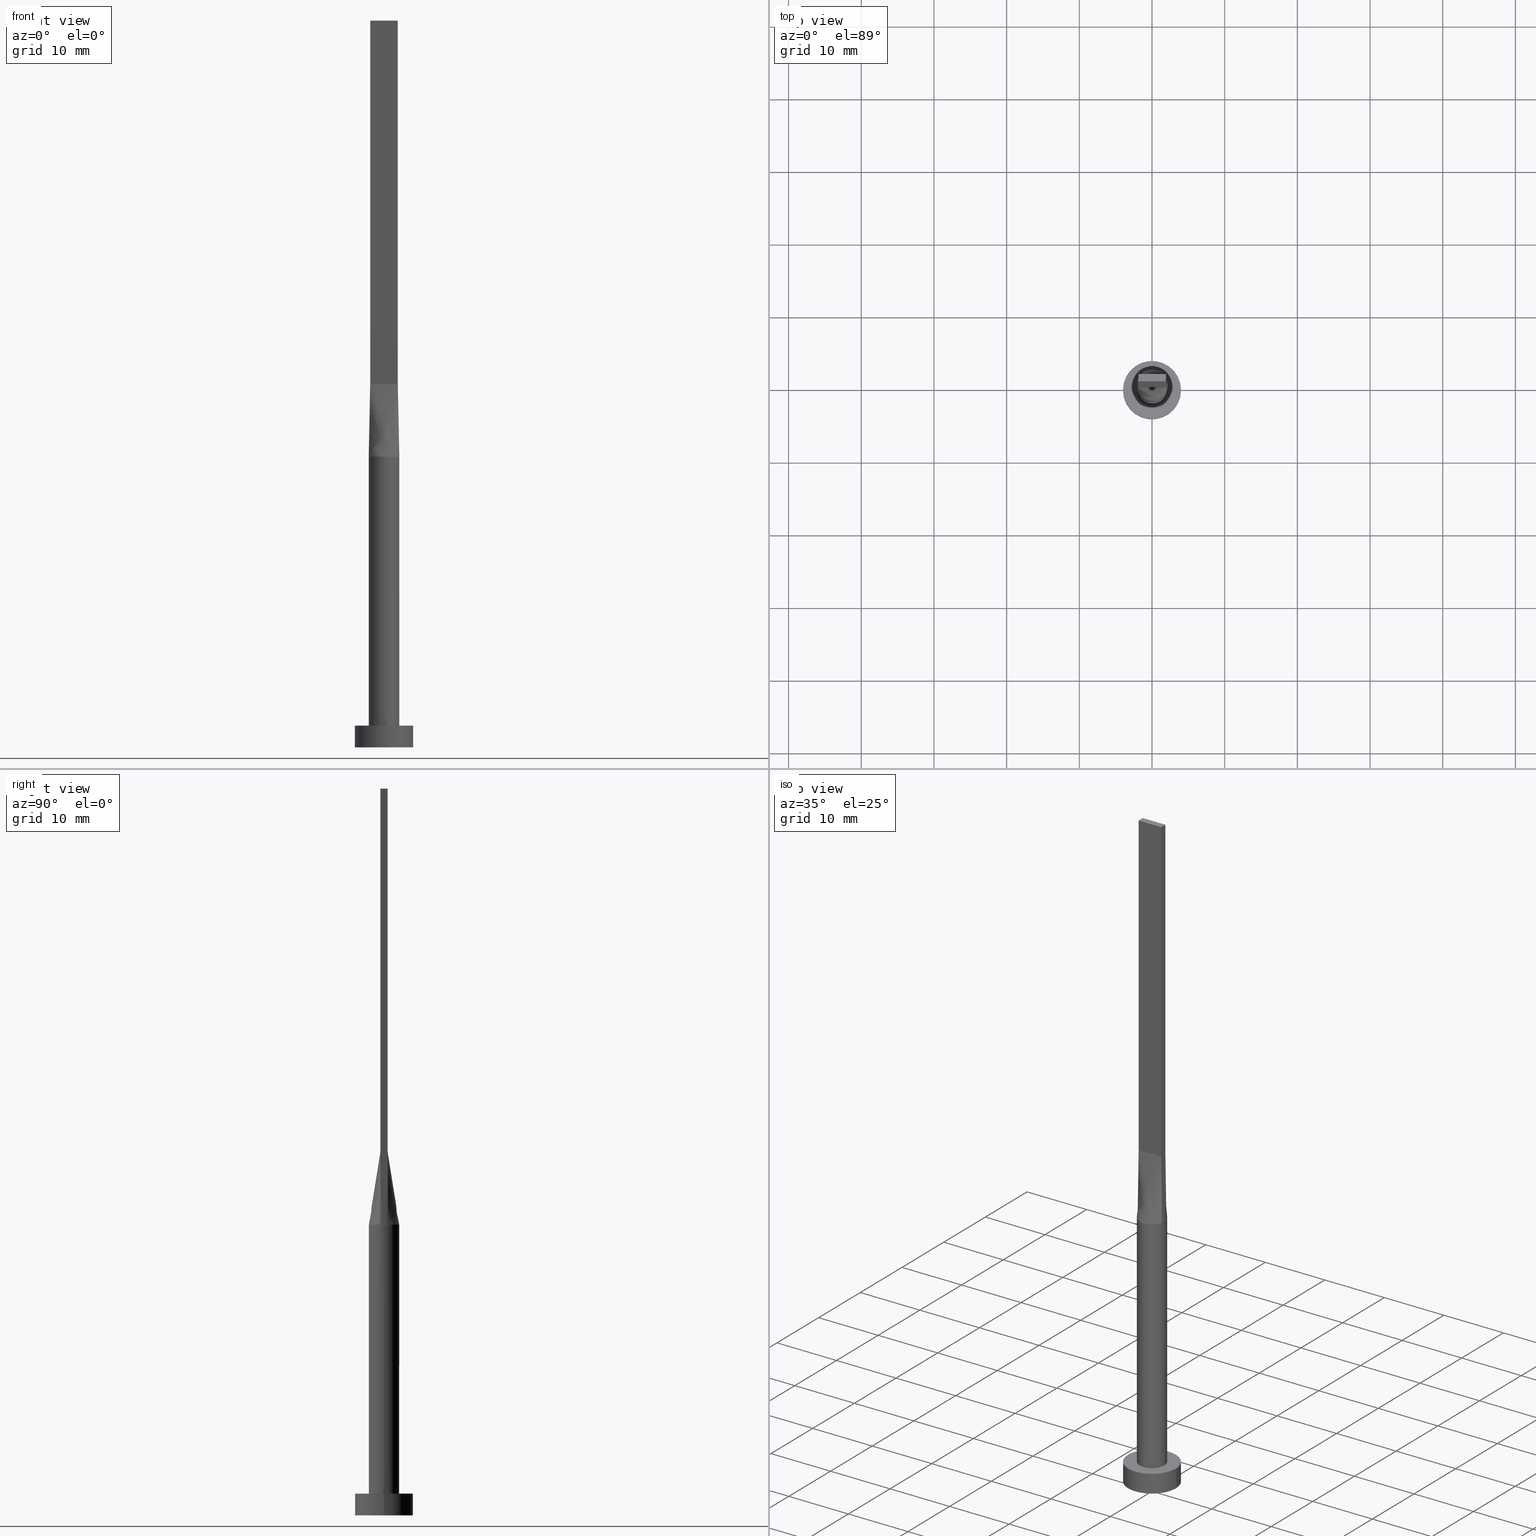
[diagram: canonical four-view strip — front | top / right | iso, engineering-drawing reading convention]
A machine part, canonical four-view strip (front | top / right | iso — engineering-drawing reading convention). The complete STEP part file that produces these views, byte-faithful:
ISO-10303-21;
HEADER;
FILE_DESCRIPTION (( 'STEP AP203' ),
    '1' );
FILE_NAME ('36a3.STEP',
    '2023-02-13T13:22:19',
    ( '' ),
    ( '' ),
    'SwSTEP 2.0',
    'SolidWorks 2019',
    '' );
FILE_SCHEMA (( 'CONFIG_CONTROL_DESIGN' ));
ENDSEC;

DATA;
#1 = LINE ( 'NONE', #304, #254 ) ;
#2 = EDGE_LOOP ( 'NONE', ( #116, #340 ) ) ;
#3 = CARTESIAN_POINT ( 'NONE',  ( 1.920830191244603746, 0.8725264301372623876, 40.00000000000000000 ) ) ;
#4 = ORIENTED_EDGE ( 'NONE', *, *, #578, .F. ) ;
#5 = CARTESIAN_POINT ( 'NONE',  ( -2.030856528251558046, -0.5344359284872515214, 40.00000000000000000 ) ) ;
#6 = CARTESIAN_POINT ( 'NONE',  ( 0.6333333333333373005, 0.5000000000000002220, 50.00000000000000000 ) ) ;
#7 = ORIENTED_EDGE ( 'NONE', *, *, #36, .T. ) ;
#8 = EDGE_CURVE ( 'NONE', #329, #137, #158, .T. ) ;
#9 = CARTESIAN_POINT ( 'NONE',  ( -0.5389299406762299016, 2.046272663899431965, 39.99999999999999289 ) ) ;
#10 = ORIENTED_EDGE ( 'NONE', *, *, #207, .F. ) ;
#11 = CARTESIAN_POINT ( 'NONE',  ( -2.030856528251557602, 0.5344359284872521876, 40.00000000000000000 ) ) ;
#12 = FACE_OUTER_BOUND ( 'NONE', #159, .T. ) ;
#13 = EDGE_CURVE ( 'NONE', #506, #454, #17, .T. ) ;
#14 = DIRECTION ( 'NONE',  ( 0.000000000000000000, 0.000000000000000000, 1.000000000000000000 ) ) ;
#15 = CARTESIAN_POINT ( 'NONE',  ( -2.031019593402089818, 0.5344793603115657321, 40.00000000000000000 ) ) ;
#16 = CC_DESIGN_PERSON_AND_ORGANIZATION_ASSIGNMENT ( #200, #204, ( #81 ) ) ;
#17 = LINE ( 'NONE', #325, #124 ) ;
#18 = CIRCLE ( 'NONE', #88, 2.100000000000000089 ) ;
#19 = ORIENTED_EDGE ( 'NONE', *, *, #414, .T. ) ;
#20 = AXIS2_PLACEMENT_3D ( 'NONE', #415, #14, #86 ) ;
#21 = CARTESIAN_POINT ( 'NONE',  ( 2.030996101999494652, 0.5344731476277209126, 40.00000000000000000 ) ) ;
#22 = DIRECTION ( 'NONE',  ( 5.706327223607920020E-17, 1.000000000000000000, -0.000000000000000000 ) ) ;
#23 = APPROVAL_DATE_TIME ( #445, #114 ) ;
#24 = CARTESIAN_POINT ( 'NONE',  ( 1.899999999999999467, 0.1666666666666668795, 50.00000000000000000 ) ) ;
#25 = APPROVAL_ROLE ( '' ) ;
#26 = ORIENTED_EDGE ( 'NONE', *, *, #514, .T. ) ;
#27 = CARTESIAN_POINT ( 'NONE',  ( -1.899999999999999911, -0.4999999999999995559, 50.00000000000000000 ) ) ;
#28 = CARTESIAN_POINT ( 'NONE',  ( 1.583333333333331039, -0.4999999999999997780, 50.00000000000000000 ) ) ;
#29 = DATE_AND_TIME ( #383, #495 ) ;
#30 = EDGE_CURVE ( 'NONE', #139, #576, #64, .T. ) ;
#31 = DIRECTION ( 'NONE',  ( 1.000000000000000000, 0.000000000000000000, 0.000000000000000000 ) ) ;
#32 = SECURITY_CLASSIFICATION_LEVEL ( 'unclassified' ) ;
#33 = CARTESIAN_POINT ( 'NONE',  ( -1.583333333333331927, 0.5000000000000002220, 50.00000000000000000 ) ) ;
#34 = CARTESIAN_POINT ( 'NONE',  ( -1.899999999999999467, 0.1666666666666670460, 50.00000000000000000 ) ) ;
#35 = FACE_OUTER_BOUND ( 'NONE', #128, .T. ) ;
#36 = EDGE_CURVE ( 'NONE', #49, #275, #97, .T. ) ;
#37 = DIRECTION ( 'NONE',  ( -1.000000000000000000, 6.505213034913026604E-16, 0.000000000000000000 ) ) ;
#38 = ORIENTED_EDGE ( 'NONE', *, *, #328, .T. ) ;
#39 = FACE_OUTER_BOUND ( 'NONE', #220, .T. ) ;
#40 = CARTESIAN_POINT ( 'NONE',  ( 1.583333333333334814, 0.5000000000000002220, 50.00000000000000711 ) ) ;
#41 = CARTESIAN_POINT ( 'NONE',  ( 0.000000000000000000, 0.000000000000000000, 40.00000000000000000 ) ) ;
#42 = CARTESIAN_POINT ( 'NONE',  ( 0.1583333333333381276, 0.5000000000000002220, 50.00000000000000000 ) ) ;
#43 = ORIENTED_EDGE ( 'NONE', *, *, #394, .F. ) ;
#44 = AXIS2_PLACEMENT_3D ( 'NONE', #339, #392, #251 ) ;
#45 = FACE_OUTER_BOUND ( 'NONE', #109, .T. ) ;
#46 = CARTESIAN_POINT ( 'NONE',  ( -2.100000000000000089, 0.000000000000000000, 40.00000000000000000 ) ) ;
#47 = ADVANCED_FACE ( 'NONE', ( #12 ), #271, .F. ) ;
#48 = CARTESIAN_POINT ( 'NONE',  ( 1.899999999999999023, -0.4999999999999997780, 50.00000000000000000 ) ) ;
#49 = VERTEX_POINT ( 'NONE', #568 ) ;
#50 = LOCAL_TIME ( 14, 22, 19.00000000000000000, #156 ) ;
#51 = CARTESIAN_POINT ( 'NONE',  ( -0.1583333333333283577, 0.5000000000000002220, 50.00000000000000000 ) ) ;
#52 = ORIENTED_EDGE ( 'NONE', *, *, #366, .T. ) ;
#53 = FACE_OUTER_BOUND ( 'NONE', #60, .T. ) ;
#54 = DIRECTION ( 'NONE',  ( 1.000000000000000000, 0.000000000000000000, 0.000000000000000000 ) ) ;
#55 = CARTESIAN_POINT ( 'NONE',  ( 1.235326090059014614, 1.714395692508636770, 40.00000000000002132 ) ) ;
#56 = EDGE_CURVE ( 'NONE', #565, #223, #485, .T. ) ;
#57 = CARTESIAN_POINT ( 'NONE',  ( -1.021961681204346384, 1.852908961101259022, 39.99999999999998579 ) ) ;
#58 = VECTOR ( 'NONE', #430, 1000.000000000000000 ) ;
#59 = DIRECTION ( 'NONE',  ( 1.000000000000000000, -2.168404344971009361E-16, 0.000000000000000000 ) ) ;
#60 = EDGE_LOOP ( 'NONE', ( #43, #496, #355, #227, #400, #546 ) ) ;
#61 = CIRCLE ( 'NONE', #395, 2.100000000000000089 ) ;
#62 = ORIENTED_EDGE ( 'NONE', *, *, #101, .T. ) ;
#63 = CARTESIAN_POINT ( 'NONE',  ( -1.583604922800831760, -1.399063468093435958, 40.00000000000000711 ) ) ;
#64 = B_SPLINE_CURVE_WITH_KNOTS ( 'NONE', 3,
 ( #21, #472, #144, #515, #239, #55, #422, #178, #373, #241, #423, #57, #182, #268, #549, #232, #465, #15 ),
 .UNSPECIFIED., .F., .F.,
 ( 4, 2, 2, 2, 2, 2, 2, 2, 4 ),
 ( 0.000000000000000000, 0.1250000000000000278, 0.2500000000000000555, 0.3750000000000001110, 0.5000000000000000000, 0.6250000000000000000, 0.7500000000000000000, 0.8750000000000001110, 1.000000000000000000 ),
 .UNSPECIFIED. ) ;
#65 = CIRCLE ( 'NONE', #20, 2.100000000000000089 ) ;
#66 = DIRECTION ( 'NONE',  ( 0.000000000000000000, 0.000000000000000000, 1.000000000000000000 ) ) ;
#67 = CALENDAR_DATE ( 2023, 13, 2 ) ;
#68 = ADVANCED_FACE ( 'NONE', ( #71, #102 ), #575, .T. ) ;
#69 = CARTESIAN_POINT ( 'NONE',  ( -1.899999999999999911, -0.4999999999999995559, 50.00000000000000000 ) ) ;
#70 = CARTESIAN_POINT ( 'NONE',  ( -2.030856528251558046, -0.5344359284872516325, 40.00000000000000000 ) ) ;
#71 = FACE_BOUND ( 'NONE', #218, .T. ) ;
#72 = CARTESIAN_POINT ( 'NONE',  ( 1.899999999999999689, -0.3333333333333330928, 50.00000000000000000 ) ) ;
#73 = VECTOR ( 'NONE', #399, 1000.000000000000000 ) ;
#74 = APPROVAL_PERSON_ORGANIZATION ( #440, #518, #25 ) ;
#75 = COORDINATED_UNIVERSAL_TIME_OFFSET ( 1, 0, .AHEAD. ) ;
#76 = FACE_OUTER_BOUND ( 'NONE', #580, .T. ) ;
#77 = ADVANCED_FACE ( 'NONE', ( #441 ), #567, .T. ) ;
#78 = CARTESIAN_POINT ( 'NONE',  ( -1.021961681204346384, 1.852908961101259022, 39.99999999999998579 ) ) ;
#79 = CARTESIAN_POINT ( 'NONE',  ( 1.899999999999999689, 0.5000000000000002220, 50.00000000000000000 ) ) ;
#80 = ORIENTED_EDGE ( 'NONE', *, *, #13, .T. ) ;
#81 = SECURITY_CLASSIFICATION ( '', '', #32 ) ;
#82 = CARTESIAN_POINT ( 'NONE',  ( -0.6333333333333288628, 0.5000000000000002220, 50.00000000000000000 ) ) ;
#83 = ORIENTED_EDGE ( 'NONE', *, *, #341, .T. ) ;
#84 = ADVANCED_FACE ( 'NONE', ( #193 ), #526, .F. ) ;
#85 = FACE_OUTER_BOUND ( 'NONE', #550, .T. ) ;
#86 = DIRECTION ( 'NONE',  ( 1.000000000000000000, 0.000000000000000000, 0.000000000000000000 ) ) ;
#87 = EDGE_LOOP ( 'NONE', ( #362, #206, #123, #52 ) ) ;
#88 = AXIS2_PLACEMENT_3D ( 'NONE', #111, #66, #245 ) ;
#89 = CYLINDRICAL_SURFACE ( 'NONE', #364, 2.100000000000000089 ) ;
#90 = LINE ( 'NONE', #131, #386 ) ;
#91 = ORIENTED_EDGE ( 'NONE', *, *, #30, .F. ) ;
#92 = CARTESIAN_POINT ( 'NONE',  ( 0.000000000000000000, 0.000000000000000000, 0.000000000000000000 ) ) ;
#93 = LINE ( 'NONE', #557, #319 ) ;
#94 = ORIENTED_EDGE ( 'NONE', *, *, #270, .T. ) ;
#95 = EDGE_CURVE ( 'NONE', #275, #460, #106, .T. ) ;
#96 = ORIENTED_EDGE ( 'NONE', *, *, #183, .F. ) ;
#97 = LINE ( 'NONE', #230, #502 ) ;
#98 = LINE ( 'NONE', #216, #398 ) ;
#99 = AXIS2_PLACEMENT_3D ( 'NONE', #540, #306, #311 ) ;
#100 = ORIENTED_EDGE ( 'NONE', *, *, #141, .T. ) ;
#101 = EDGE_CURVE ( 'NONE', #173, #297, #112, .T. ) ;
#102 = FACE_OUTER_BOUND ( 'NONE', #547, .T. ) ;
#103 = CYLINDRICAL_SURFACE ( 'NONE', #308, 4.000000000000000000 ) ;
#104 = PERSON_AND_ORGANIZATION ( #277, #554 ) ;
#105 = CIRCLE ( 'NONE', #233, 2.100000000000000089 ) ;
#106 = LINE ( 'NONE', #354, #573 ) ;
#107 = CARTESIAN_POINT ( 'NONE',  ( -2.100000000000000977, -0.1811271572287798393, 40.00000000000000000 ) ) ;
#108 = DIRECTION ( 'NONE',  ( -0.000000000000000000, -0.000000000000000000, -1.000000000000000000 ) ) ;
#109 = EDGE_LOOP ( 'NONE', ( #19, #273, #4, #176 ) ) ;
#110 = COORDINATED_UNIVERSAL_TIME_OFFSET ( 1, 0, .AHEAD. ) ;
#111 = CARTESIAN_POINT ( 'NONE',  ( 0.000000000000000000, 0.000000000000000000, 40.00000000000000000 ) ) ;
#112 = CIRCLE ( 'NONE', #457, 4.000000000000000000 ) ;
#113 = CARTESIAN_POINT ( 'NONE',  ( 0.7916666666666622998, -0.4999999999999996669, 50.00000000000000000 ) ) ;
#114 = APPROVAL ( #285, 'NEUR�EN�' ) ;
#115 = DIRECTION ( 'NONE',  ( 0.000000000000000000, 0.000000000000000000, 1.000000000000000000 ) ) ;
#116 = ORIENTED_EDGE ( 'NONE', *, *, #366, .F. ) ;
#117 = CARTESIAN_POINT ( 'NONE',  ( -2.031019593402089818, 0.5344793603115657321, 40.00000000000000000 ) ) ;
#118 = COORDINATED_UNIVERSAL_TIME_OFFSET ( 1, 0, .AHEAD. ) ;
#119 = B_SPLINE_SURFACE_WITH_KNOTS ( 'NONE', 3, 1, ( 
 ( #5, #545 ),
 ( #313, #501 ),
 ( #252, #519 ),
 ( #374, #488 ),
 ( #63, #555 ),
 ( #283, #479 ),
 ( #437, #291 ),
 ( #246, #347 ),
 ( #428, #242 ),
 ( #194, #421 ),
 ( #435, #537 ),
 ( #571, #164 ),
 ( #356, #113 ),
 ( #491, #524 ),
 ( #581, #293 ),
 ( #360, #28 ),
 ( #343, #489 ),
 ( #234, #189 ) ),
 .UNSPECIFIED., .F., .F., .F.,
 ( 4, 2, 2, 2, 2, 2, 2, 2, 4 ),
 ( 2, 2 ),
 ( 0.000000000000000000, 0.1250000000000000555, 0.2500000000000001665, 0.3750000000000002776, 0.5000000000000003331, 0.6250000000000002220, 0.7500000000000002220, 0.8750000000000001110, 1.000000000000000000 ),
 ( 0.000000000000000000, 1.000000000000000000 ),
 .UNSPECIFIED. ) ;
#120 = CARTESIAN_POINT ( 'NONE',  ( 0.000000000000000000, 0.000000000000000000, 3.000000000000000000 ) ) ;
#121 = CARTESIAN_POINT ( 'NONE',  ( -1.899999999999999689, 0.5000000000000002220, 100.0000000000000000 ) ) ;
#122 = CARTESIAN_POINT ( 'NONE',  ( -2.030856528251557602, 0.5344359284872521876, 40.00000000000000000 ) ) ;
#123 = ORIENTED_EDGE ( 'NONE', *, *, #224, .T. ) ;
#124 = VECTOR ( 'NONE', #416, 1000.000000000000000 ) ;
#125 = PRODUCT_DEFINITION_SHAPE ( 'NONE', 'NONE',  #259 ) ;
#126 = LINE ( 'NONE', #250, #280 ) ;
#127 = CARTESIAN_POINT ( 'NONE',  ( 1.108333333333336279, 0.5000000000000002220, 50.00000000000000000 ) ) ;
#128 = EDGE_LOOP ( 'NONE', ( #258, #94, #62, #168 ) ) ;
#129 = AXIS2_PLACEMENT_3D ( 'NONE', #401, #37, #315 ) ;
#130 = EDGE_CURVE ( 'NONE', #576, #385, #18, .T. ) ;
#131 = CARTESIAN_POINT ( 'NONE',  ( 1.965428264125778091, -0.5172179642436263158, 45.00000000000000000 ) ) ;
#132 = ORIENTED_EDGE ( 'NONE', *, *, #544, .T. ) ;
#133 = CARTESIAN_POINT ( 'NONE',  ( 0.3166666666666711483, 0.5000000000000002220, 50.00000000000000000 ) ) ;
#134 = ORIENTED_EDGE ( 'NONE', *, *, #328, .F. ) ;
#135 = CIRCLE ( 'NONE', #276, 2.100000000000000089 ) ;
#136 = EDGE_CURVE ( 'NONE', #393, #166, #61, .T. ) ;
#137 = VERTEX_POINT ( 'NONE', #248 ) ;
#138 = AXIS2_PLACEMENT_3D ( 'NONE', #570, #292, #530 ) ;
#139 = VERTEX_POINT ( 'NONE', #157 ) ;
#140 = AXIS2_PLACEMENT_3D ( 'NONE', #468, #59, #372 ) ;
#141 = EDGE_CURVE ( 'NONE', #385, #460, #135, .T. ) ;
#142 = VECTOR ( 'NONE', #149, 1000.000000000000000 ) ;
#143 = EDGE_LOOP ( 'NONE', ( #484, #552, #38, #237, #411 ) ) ;
#144 = CARTESIAN_POINT ( 'NONE',  ( 1.920830191244603746, 0.8725264301372623876, 40.00000000000000000 ) ) ;
#145 = DIRECTION ( 'NONE',  ( -2.168404344971008868E-16, 1.000000000000000000, -0.000000000000000000 ) ) ;
#146 = APPLICATION_PROTOCOL_DEFINITION ( 'international standard', 'config_control_design', 1994, #345 ) ;
#147 = CC_DESIGN_DATE_AND_TIME_ASSIGNMENT ( #426, #344, ( #259 ) ) ;
#148 = CARTESIAN_POINT ( 'NONE',  ( 2.100000000000000089, -0.1811271572287806442, 40.00000000000000711 ) ) ;
#149 = DIRECTION ( 'NONE',  ( -0.000000000000000000, -0.000000000000000000, -1.000000000000000000 ) ) ;
#150 = DATE_TIME_ROLE ( 'classification_date' ) ;
#151 = DIRECTION ( 'NONE',  ( 0.000000000000000000, -0.000000000000000000, -1.000000000000000000 ) ) ;
#152 = FACE_OUTER_BOUND ( 'NONE', #331, .T. ) ;
#153 = PERSON_AND_ORGANIZATION_ROLE ( 'creator' ) ;
#154 = CARTESIAN_POINT ( 'NONE',  ( 1.899999999999999689, -0.1666666666666664354, 50.00000000000000000 ) ) ;
#155 = CARTESIAN_POINT ( 'NONE',  ( 4.000000000000000000, 4.898587196589412829E-16, 3.000000000000000000 ) ) ;
#156 = COORDINATED_UNIVERSAL_TIME_OFFSET ( 1, 0, .AHEAD. ) ;
#157 = CARTESIAN_POINT ( 'NONE',  ( 2.030996101999494652, 0.5344731476277209126, 40.00000000000000000 ) ) ;
#158 = CIRCLE ( 'NONE', #240, 4.000000000000000000 ) ;
#159 = EDGE_LOOP ( 'NONE', ( #7, #196, #368, #188 ) ) ;
#160 = FACE_OUTER_BOUND ( 'NONE', #2, .T. ) ;
#161 = CARTESIAN_POINT ( 'NONE',  ( 1.899999999999999911, -0.4999999999999997780, 50.00000000000000000 ) ) ;
#162 = ORIENTED_EDGE ( 'NONE', *, *, #130, .T. ) ;
#163 = CARTESIAN_POINT ( 'NONE',  ( -1.899999999999999689, 0.5000000000000002220, 50.00000000000000000 ) ) ;
#164 = CARTESIAN_POINT ( 'NONE',  ( 0.6333333333333286408, -0.4999999999999995559, 50.00000000000000000 ) ) ;
#165 = LINE ( 'NONE', #219, #425 ) ;
#166 = VERTEX_POINT ( 'NONE', #528 ) ;
#167 = DIRECTION ( 'NONE',  ( 0.01308445504626045038, -0.003443277643752733208, 0.9999084662483913588 ) ) ;
#168 = ORIENTED_EDGE ( 'NONE', *, *, #224, .F. ) ;
#169 = CARTESIAN_POINT ( 'NONE',  ( 2.030856528251557602, 0.5344359284872521876, 40.00000000000000000 ) ) ;
#170 = AXIS2_PLACEMENT_3D ( 'NONE', #521, #108, #446 ) ;
#171 = CARTESIAN_POINT ( 'NONE',  ( -2.031004407172260162, -0.5344754071304557153, 40.00000000000000000 ) ) ;
#172 = PRODUCT ( '36a3', '36a3', '', ( #463 ) ) ;
#173 = VERTEX_POINT ( 'NONE', #296 ) ;
#174 = ADVANCED_FACE ( 'NONE', ( #76 ), #257, .T. ) ;
#175 = CARTESIAN_POINT ( 'NONE',  ( 0.000000000000000000, 0.000000000000000000, 3.000000000000000000 ) ) ;
#176 = ORIENTED_EDGE ( 'NONE', *, *, #95, .T. ) ;
#177 = DIRECTION ( 'NONE',  ( 1.000000000000000000, 0.000000000000000000, 0.000000000000000000 ) ) ;
#178 = CARTESIAN_POINT ( 'NONE',  ( 0.5389299406762297906, 2.046272663899431077, 40.00000000000000000 ) ) ;
#179 = ADVANCED_BREP_SHAPE_REPRESENTATION ( '36a3', ( #221, #225 ), #410 ) ;
#180 = DIRECTION ( 'NONE',  ( -2.168404344971009361E-16, -1.000000000000000000, 0.000000000000000000 ) ) ;
#181 = CARTESIAN_POINT ( 'NONE',  ( -1.899999999999999911, -0.4999999999999995559, 50.00000000000000000 ) ) ;
#182 = CARTESIAN_POINT ( 'NONE',  ( -1.235326090059014836, 1.714395692508636326, 40.00000000000000000 ) ) ;
#183 = EDGE_CURVE ( 'NONE', #420, #506, #202, .T. ) ;
#184 = CARTESIAN_POINT ( 'NONE',  ( 0.000000000000000000, 0.000000000000000000, 3.000000000000000000 ) ) ;
#185 = CC_DESIGN_PERSON_AND_ORGANIZATION_ASSIGNMENT ( #477, #388, ( #266 ) ) ;
#186 = CARTESIAN_POINT ( 'NONE',  ( -1.899999999999999911, -0.4999999999999995559, 100.0000000000000000 ) ) ;
#187 = LOCAL_TIME ( 14, 22, 19.00000000000000000, #75 ) ;
#188 = ORIENTED_EDGE ( 'NONE', *, *, #236, .T. ) ;
#189 = CARTESIAN_POINT ( 'NONE',  ( 1.899999999999999023, -0.4999999999999997780, 50.00000000000000000 ) ) ;
#190 = ADVANCED_FACE ( 'NONE', ( #35 ), #301, .T. ) ;
#191 =( NAMED_UNIT ( * ) PLANE_ANGLE_UNIT ( ) SI_UNIT ( $, .RADIAN. ) );
#192 = PERSON_AND_ORGANIZATION ( #277, #554 ) ;
#193 = FACE_OUTER_BOUND ( 'NONE', #367, .T. ) ;
#194 = CARTESIAN_POINT ( 'NONE',  ( 0.2698109971861026857, -2.100000000000000977, 40.00000000000001421 ) ) ;
#195 = CARTESIAN_POINT ( 'NONE',  ( 2.076193315816324603, -0.3621561357411388626, 39.99999999999999289 ) ) ;
#196 = ORIENTED_EDGE ( 'NONE', *, *, #544, .F. ) ;
#197 = CARTESIAN_POINT ( 'NONE',  ( -1.583604922800830428, 1.399063468093436402, 40.00000000000000000 ) ) ;
#198 = APPLICATION_PROTOCOL_DEFINITION ( 'international standard', 'config_control_design', 1994, #310 ) ;
#199 = LINE ( 'NONE', #163, #494 ) ;
#200 = PERSON_AND_ORGANIZATION ( #277, #554 ) ;
#201 = AXIS2_PLACEMENT_3D ( 'NONE', #120, #402, #300 ) ;
#202 = LINE ( 'NONE', #286, #577 ) ;
#203 = PLANE ( 'NONE',  #511 ) ;
#204 = PERSON_AND_ORGANIZATION_ROLE ( 'classification_officer' ) ;
#205 = DIRECTION ( 'NONE',  ( 1.000000000000000000, 4.440892098500626951E-15, 0.000000000000000000 ) ) ;
#206 = ORIENTED_EDGE ( 'NONE', *, *, #535, .F. ) ;
#207 = EDGE_CURVE ( 'NONE', #385, #223, #211, .T. ) ;
#208 = DIRECTION ( 'NONE',  ( 1.000000000000000000, 0.000000000000000000, -0.000000000000000000 ) ) ;
#209 = CARTESIAN_POINT ( 'NONE',  ( -1.899999999999999911, -0.4999999999999995559, 100.0000000000000000 ) ) ;
#210 = APPROVAL_ROLE ( '' ) ;
#211 = LINE ( 'NONE', #46, #73 ) ;
#212 = VECTOR ( 'NONE', #299, 1000.000000000000000 ) ;
#213 = ORIENTED_EDGE ( 'NONE', *, *, #394, .T. ) ;
#214 = CARTESIAN_POINT ( 'NONE',  ( 2.031027953490633031, -0.5344816358097418396, 40.00000000000000000 ) ) ;
#215 = EDGE_CURVE ( 'NONE', #393, #312, #90, .T. ) ;
#216 = CARTESIAN_POINT ( 'NONE',  ( 1.899999999999999023, -0.4999999999999997780, 100.0000000000000000 ) ) ;
#217 = CARTESIAN_POINT ( 'NONE',  ( 1.266666666666669494, 0.5000000000000002220, 50.00000000000000711 ) ) ;
#218 = EDGE_LOOP ( 'NONE', ( #404, #539 ) ) ;
#219 = CARTESIAN_POINT ( 'NONE',  ( -4.000000000000000000, 0.000000000000000000, 3.000000000000000000 ) ) ;
#220 = EDGE_LOOP ( 'NONE', ( #536, #504, #461, #467 ) ) ;
#221 = MANIFOLD_SOLID_BREP ( 'P�idat vysunut�m5', #405 ) ;
#222 = CARTESIAN_POINT ( 'NONE',  ( 1.235326090059014614, 1.714395692508636770, 40.00000000000002132 ) ) ;
#223 = VERTEX_POINT ( 'NONE', #361 ) ;
#224 = EDGE_CURVE ( 'NONE', #137, #297, #165, .T. ) ;
#225 = AXIS2_PLACEMENT_3D ( 'NONE', #92, #267, #177 ) ;
#226 = DIRECTION ( 'NONE',  ( -0.000000000000000000, -0.000000000000000000, -1.000000000000000000 ) ) ;
#227 = ORIENTED_EDGE ( 'NONE', *, *, #141, .F. ) ;
#228 = UNCERTAINTY_MEASURE_WITH_UNIT (LENGTH_MEASURE( 1.000000000000000082E-05 ), #433, 'distance_accuracy_value', 'NONE');
#229 = DIRECTION ( 'NONE',  ( -0.000000000000000000, -0.000000000000000000, -1.000000000000000000 ) ) ;
#230 = CARTESIAN_POINT ( 'NONE',  ( -1.899999999999999689, 0.5000000000000002220, 50.00000000000000000 ) ) ;
#231 = CARTESIAN_POINT ( 'NONE',  ( -4.000000000000000000, 0.000000000000000000, 0.000000000000000000 ) ) ;
#232 = CARTESIAN_POINT ( 'NONE',  ( -1.920830191244604412, 0.8725264301372623876, 40.00000000000000711 ) ) ;
#233 = AXIS2_PLACEMENT_3D ( 'NONE', #566, #523, #497 ) ;
#234 = CARTESIAN_POINT ( 'NONE',  ( 2.030856528251557158, -0.5344359284872526317, 40.00000000000000000 ) ) ;
#235 = CC_DESIGN_SECURITY_CLASSIFICATION ( #81, ( #266 ) ) ;
#236 = EDGE_CURVE ( 'NONE', #506, #49, #363, .T. ) ;
#237 = ORIENTED_EDGE ( 'NONE', *, *, #493, .F. ) ;
#238 = CARTESIAN_POINT ( 'NONE',  ( -1.108333333333330062, 0.5000000000000002220, 50.00000000000000000 ) ) ;
#239 = CARTESIAN_POINT ( 'NONE',  ( 1.583604922800830428, 1.399063468093436624, 40.00000000000000000 ) ) ;
#240 = AXIS2_PLACEMENT_3D ( 'NONE', #184, #509, #553 ) ;
#241 = CARTESIAN_POINT ( 'NONE',  ( -0.2698109971861040179, 2.100000000000000089, 40.00000000000000711 ) ) ;
#242 = CARTESIAN_POINT ( 'NONE',  ( -0.1583333333333388215, -0.4999999999999995559, 50.00000000000000711 ) ) ;
#243 = EDGE_CURVE ( 'NONE', #576, #49, #403, .T. ) ;
#244 = PERSON_AND_ORGANIZATION ( #277, #554 ) ;
#245 = DIRECTION ( 'NONE',  ( 1.000000000000000000, 0.000000000000000000, 0.000000000000000000 ) ) ;
#246 = CARTESIAN_POINT ( 'NONE',  ( -0.5389299406762309008, -2.046272663899432409, 40.00000000000000711 ) ) ;
#247 = CALENDAR_DATE ( 2023, 13, 2 ) ;
#248 = CARTESIAN_POINT ( 'NONE',  ( -4.000000000000000000, 0.000000000000000000, 3.000000000000000000 ) ) ;
#249 = CARTESIAN_POINT ( 'NONE',  ( -1.235326090059014836, 1.714395692508636326, 40.00000000000000000 ) ) ;
#250 = CARTESIAN_POINT ( 'NONE',  ( -1.899999999999999911, -0.4999999999999995559, 100.0000000000000000 ) ) ;
#251 = DIRECTION ( 'NONE',  ( 1.000000000000000000, 0.000000000000000000, -0.000000000000000000 ) ) ;
#252 = CARTESIAN_POINT ( 'NONE',  ( -1.920830191244604412, -0.8725264301372614995, 40.00000000000000711 ) ) ;
#253 = PERSON_AND_ORGANIZATION ( #277, #554 ) ;
#254 = VECTOR ( 'NONE', #538, 1000.000000000000000 ) ;
#255 = EDGE_CURVE ( 'NONE', #365, #312, #534, .T. ) ;
#256 = CARTESIAN_POINT ( 'NONE',  ( 1.899999999999999467, 0.3333333333333335369, 50.00000000000000000 ) ) ;
#257 = CYLINDRICAL_SURFACE ( 'NONE', #170, 2.100000000000000089 ) ;
#258 = ORIENTED_EDGE ( 'NONE', *, *, #8, .F. ) ;
#259 = PRODUCT_DEFINITION ( 'NEZN�M�', '', #266, #382 ) ;
#260 = CARTESIAN_POINT ( 'NONE',  ( 1.987786580065029174, 0.6981017315960605929, 40.00000000000000000 ) ) ;
#261 = CARTESIAN_POINT ( 'NONE',  ( -1.920830191244604412, 0.8725264301372623876, 40.00000000000000711 ) ) ;
#262 = CARTESIAN_POINT ( 'NONE',  ( 1.719043754744862040, 1.223020672007445464, 40.00000000000001421 ) ) ;
#263 = ORIENTED_EDGE ( 'NONE', *, *, #95, .F. ) ;
#264 = CARTESIAN_POINT ( 'NONE',  ( 0.2698109971861041290, 2.100000000000000089, 39.99999999999999289 ) ) ;
#265 = ORIENTED_EDGE ( 'NONE', *, *, #130, .F. ) ;
#266 = PRODUCT_DEFINITION_FORMATION_WITH_SPECIFIED_SOURCE ( 'LIBOVOLN�', '', #172, .NOT_KNOWN. ) ;
#267 = DIRECTION ( 'NONE',  ( 0.000000000000000000, 0.000000000000000000, 1.000000000000000000 ) ) ;
#268 = CARTESIAN_POINT ( 'NONE',  ( -1.583604922800830428, 1.399063468093436402, 40.00000000000000000 ) ) ;
#269 = ORIENTED_EDGE ( 'NONE', *, *, #323, .F. ) ;
#270 = EDGE_CURVE ( 'NONE', #329, #173, #1, .T. ) ;
#271 = PLANE ( 'NONE',  #140 ) ;
#272 = VECTOR ( 'NONE', #499, 1000.000000000000000 ) ;
#273 = ORIENTED_EDGE ( 'NONE', *, *, #215, .T. ) ;
#274 = ADVANCED_FACE ( 'NONE', ( #85 ), #289, .T. ) ;
#275 = VERTEX_POINT ( 'NONE', #181 ) ;
#276 = AXIS2_PLACEMENT_3D ( 'NONE', #432, #564, #31 ) ;
#277 = PERSON ( 'NEUR�EN�', 'NEUR�EN�', 'NEUR�EN�', ('NEUR�EN�'), ('NEUR�EN�'), ('NEUR�EN�') ) ;
#278 = DIRECTION ( 'NONE',  ( -0.01308445504626045038, -0.003443277643752798260, 0.9999084662483913588 ) ) ;
#279 = CARTESIAN_POINT ( 'NONE',  ( 1.899999999999999689, 0.5000000000000002220, 50.00000000000000000 ) ) ;
#280 = VECTOR ( 'NONE', #287, 1000.000000000000000 ) ;
#281 = CARTESIAN_POINT ( 'NONE',  ( 0.000000000000000000, 0.000000000000000000, 100.0000000000000000 ) ) ;
#282 = DIRECTION ( 'NONE',  ( 1.000000000000000000, 0.000000000000000000, 0.000000000000000000 ) ) ;
#283 = CARTESIAN_POINT ( 'NONE',  ( -1.235326090059015725, -1.714395692508636104, 39.99999999999999289 ) ) ;
#284 = CARTESIAN_POINT ( 'NONE',  ( -1.899999999999999689, -0.1666666666666662133, 50.00000000000000000 ) ) ;
#285 = APPROVAL_STATUS ( 'not_yet_approved' ) ;
#286 = CARTESIAN_POINT ( 'NONE',  ( 1.899999999999999689, 0.5000000000000002220, 100.0000000000000000 ) ) ;
#287 = DIRECTION ( 'NONE',  ( -0.000000000000000000, -0.000000000000000000, -1.000000000000000000 ) ) ;
#288 = AXIS2_PLACEMENT_3D ( 'NONE', #483, #349, #487 ) ;
#289 = B_SPLINE_SURFACE_WITH_KNOTS ( 'NONE', 3, 1, ( 
 ( #169, #79 ),
 ( #260, #453 ),
 ( #3, #40 ),
 ( #262, #217 ),
 ( #459, #127 ),
 ( #222, #409 ),
 ( #503, #6 ),
 ( #490, #133 ),
 ( #264, #42 ),
 ( #307, #51 ),
 ( #9, #532 ),
 ( #78, #82 ),
 ( #249, #559 ),
 ( #197, #238 ),
 ( #333, #443 ),
 ( #261, #33 ),
 ( #412, #321 ),
 ( #11, #466 ) ),
 .UNSPECIFIED., .F., .F., .F.,
 ( 4, 2, 2, 2, 2, 2, 2, 2, 4 ),
 ( 2, 2 ),
 ( 0.000000000000000000, 0.1250000000000000278, 0.2500000000000000555, 0.3750000000000001110, 0.5000000000000000000, 0.6250000000000000000, 0.7500000000000000000, 0.8750000000000001110, 1.000000000000000000 ),
 ( 0.000000000000000000, 1.000000000000000000 ),
 .UNSPECIFIED. ) ;
#290 = DIRECTION ( 'NONE',  ( 6.505213034913026604E-16, 1.000000000000000000, 0.000000000000000000 ) ) ;
#291 = CARTESIAN_POINT ( 'NONE',  ( -0.6333333333333375226, -0.4999999999999995559, 50.00000000000000000 ) ) ;
#292 = DIRECTION ( 'NONE',  ( 0.000000000000000000, 0.000000000000000000, 1.000000000000000000 ) ) ;
#293 = CARTESIAN_POINT ( 'NONE',  ( 1.266666666666663277, -0.4999999999999997780, 50.00000000000000000 ) ) ;
#294 = APPROVAL_PERSON_ORGANIZATION ( #244, #114, #525 ) ;
#295 = CIRCLE ( 'NONE', #475, 2.100000000000000089 ) ;
#296 = CARTESIAN_POINT ( 'NONE',  ( 4.000000000000000000, 4.898587196589412829E-16, 0.000000000000000000 ) ) ;
#297 = VERTEX_POINT ( 'NONE', #231 ) ;
#298 = LINE ( 'NONE', #69, #58 ) ;
#299 = DIRECTION ( 'NONE',  ( 1.000000000000000000, -5.706327223607920020E-17, 0.000000000000000000 ) ) ;
#300 = DIRECTION ( 'NONE',  ( 1.000000000000000000, 0.000000000000000000, 0.000000000000000000 ) ) ;
#301 = CYLINDRICAL_SURFACE ( 'NONE', #370, 4.000000000000000000 ) ;
#302 = EDGE_CURVE ( 'NONE', #223, #565, #65, .T. ) ;
#303 = CARTESIAN_POINT ( 'NONE',  ( -1.899999999999999689, 0.5000000000000002220, 50.00000000000000000 ) ) ;
#304 = CARTESIAN_POINT ( 'NONE',  ( 4.000000000000000000, 4.898587196589412829E-16, 3.000000000000000000 ) ) ;
#305 = ORIENTED_EDGE ( 'NONE', *, *, #243, .F. ) ;
#306 = DIRECTION ( 'NONE',  ( 0.000000000000000000, 0.000000000000000000, 1.000000000000000000 ) ) ;
#307 = CARTESIAN_POINT ( 'NONE',  ( -0.2698109971861040179, 2.100000000000000089, 40.00000000000000711 ) ) ;
#308 = AXIS2_PLACEMENT_3D ( 'NONE', #508, #418, #324 ) ;
#309 = ORIENTED_EDGE ( 'NONE', *, *, #384, .T. ) ;
#310 = APPLICATION_CONTEXT ( 'configuration controlled 3d designs of mechanical parts and assemblies' ) ;
#311 = DIRECTION ( 'NONE',  ( 1.000000000000000000, 0.000000000000000000, 0.000000000000000000 ) ) ;
#312 = VERTEX_POINT ( 'NONE', #48 ) ;
#313 = CARTESIAN_POINT ( 'NONE',  ( -1.987786580065029840, -0.6981017315960599268, 39.99999999999999289 ) ) ;
#314 = CC_DESIGN_PERSON_AND_ORGANIZATION_ASSIGNMENT ( #104, #153, ( #259 ) ) ;
#315 = DIRECTION ( 'NONE',  ( -6.505213034913026604E-16, -1.000000000000000000, 0.000000000000000000 ) ) ;
#316 = ORIENTED_EDGE ( 'NONE', *, *, #56, .T. ) ;
#317 = DIRECTION ( 'NONE',  ( 0.000000000000000000, 0.000000000000000000, 1.000000000000000000 ) ) ;
#318 = ORIENTED_EDGE ( 'NONE', *, *, #243, .T. ) ;
#319 = VECTOR ( 'NONE', #419, 1000.000000000000000 ) ;
#320 = LINE ( 'NONE', #471, #417 ) ;
#321 = CARTESIAN_POINT ( 'NONE',  ( -1.741666666666665808, 0.5000000000000002220, 50.00000000000000000 ) ) ;
#322 = ORIENTED_EDGE ( 'NONE', *, *, #578, .T. ) ;
#323 = EDGE_CURVE ( 'NONE', #166, #139, #295, .T. ) ;
#324 = DIRECTION ( 'NONE',  ( -1.000000000000000000, 0.000000000000000000, 0.000000000000000000 ) ) ;
#325 = CARTESIAN_POINT ( 'NONE',  ( -1.899999999999999689, 0.5000000000000002220, 100.0000000000000000 ) ) ;
#326 = DIRECTION ( 'NONE',  ( -1.000000000000000000, 5.706327223607920020E-17, 0.000000000000000000 ) ) ;
#327 = LOCAL_TIME ( 14, 22, 19.00000000000000000, #110 ) ;
#328 = EDGE_CURVE ( 'NONE', #139, #408, #320, .T. ) ;
#329 = VERTEX_POINT ( 'NONE', #155 ) ;
#330 = CARTESIAN_POINT ( 'NONE',  ( 1.899999999999999689, 0.5000000000000002220, 50.00000000000000000 ) ) ;
#331 = EDGE_LOOP ( 'NONE', ( #162, #100, #263, #450, #305 ) ) ;
#332 = CARTESIAN_POINT ( 'NONE',  ( -1.899999999999999689, 0.5000000000000002220, 100.0000000000000000 ) ) ;
#333 = CARTESIAN_POINT ( 'NONE',  ( -1.719043754744861596, 1.223020672007445242, 39.99999999999999289 ) ) ;
#334 = CALENDAR_DATE ( 2023, 13, 2 ) ;
#335 = CARTESIAN_POINT ( 'NONE',  ( 2.030856528251557602, 0.5344359284872527427, 40.00000000000000000 ) ) ;
#336 = VECTOR ( 'NONE', #167, 1000.000000000000114 ) ;
#337 = CARTESIAN_POINT ( 'NONE',  ( -2.100000000000000089, 0.1811271572287804221, 40.00000000000000711 ) ) ;
#338 = PERSON_AND_ORGANIZATION_ROLE ( 'design_owner' ) ;
#339 = CARTESIAN_POINT ( 'NONE',  ( 0.000000000000000000, 0.000000000000000000, 3.000000000000000000 ) ) ;
#340 = ORIENTED_EDGE ( 'NONE', *, *, #101, .F. ) ;
#341 = EDGE_CURVE ( 'NONE', #454, #365, #498, .T. ) ;
#342 = CARTESIAN_POINT ( 'NONE',  ( -1.899999999999999467, 0.3333333333333336479, 50.00000000000000000 ) ) ;
#343 = CARTESIAN_POINT ( 'NONE',  ( 1.987786580065029396, -0.6981017315960611480, 40.00000000000000711 ) ) ;
#344 = DATE_TIME_ROLE ( 'creation_date' ) ;
#345 = APPLICATION_CONTEXT ( 'configuration controlled 3d designs of mechanical parts and assemblies' ) ;
#346 = CARTESIAN_POINT ( 'NONE',  ( 2.100000000000000089, 0.1811271572287802556, 40.00000000000000000 ) ) ;
#347 = CARTESIAN_POINT ( 'NONE',  ( -0.3166666666666716479, -0.4999999999999995559, 50.00000000000000000 ) ) ;
#348 = APPROVAL_DATE_TIME ( #29, #518 ) ;
#349 = DIRECTION ( 'NONE',  ( 0.000000000000000000, 0.000000000000000000, 1.000000000000000000 ) ) ;
#350 = CIRCLE ( 'NONE', #201, 4.000000000000000000 ) ;
#351 = ADVANCED_FACE ( 'NONE', ( #39 ), #397, .F. ) ;
#352 = CALENDAR_DATE ( 2023, 13, 2 ) ;
#353 = APPROVAL_PERSON_ORGANIZATION ( #516, #429, #210 ) ;
#354 = CARTESIAN_POINT ( 'NONE',  ( -1.965428264125778979, -0.5172179642436255387, 45.00000000000000000 ) ) ;
#355 = ORIENTED_EDGE ( 'NONE', *, *, #414, .F. ) ;
#356 = CARTESIAN_POINT ( 'NONE',  ( 1.235326090059013504, -1.714395692508636548, 39.99999999999999289 ) ) ;
#357 = DIRECTION ( 'NONE',  ( -0.000000000000000000, -0.000000000000000000, -1.000000000000000000 ) ) ;
#358 = ORIENTED_EDGE ( 'NONE', *, *, #183, .T. ) ;
#359 = CARTESIAN_POINT ( 'NONE',  ( -1.899999999999999911, -0.4999999999999995559, 100.0000000000000000 ) ) ;
#360 = CARTESIAN_POINT ( 'NONE',  ( 1.920830191244603302, -0.8725264301372632758, 40.00000000000001421 ) ) ;
#361 = CARTESIAN_POINT ( 'NONE',  ( -2.100000000000000089, 0.000000000000000000, 3.000000000000000000 ) ) ;
#362 = ORIENTED_EDGE ( 'NONE', *, *, #270, .F. ) ;
#363 = LINE ( 'NONE', #121, #505 ) ;
#364 = AXIS2_PLACEMENT_3D ( 'NONE', #41, #229, #455 ) ;
#365 = VERTEX_POINT ( 'NONE', #456 ) ;
#366 = EDGE_CURVE ( 'NONE', #297, #173, #520, .T. ) ;
#367 = EDGE_LOOP ( 'NONE', ( #309, #492, #96, #507 ) ) ;
#368 = ORIENTED_EDGE ( 'NONE', *, *, #13, .F. ) ;
#369 = CC_DESIGN_PERSON_AND_ORGANIZATION_ASSIGNMENT ( #253, #338, ( #172 ) ) ;
#370 = AXIS2_PLACEMENT_3D ( 'NONE', #175, #226, #542 ) ;
#371 = PLANE ( 'NONE',  #469 ) ;
#372 = DIRECTION ( 'NONE',  ( 2.168404344971009361E-16, 1.000000000000000000, 0.000000000000000000 ) ) ;
#373 = CARTESIAN_POINT ( 'NONE',  ( 0.2698109971861041290, 2.100000000000000089, 39.99999999999999289 ) ) ;
#374 = CARTESIAN_POINT ( 'NONE',  ( -1.719043754744862484, -1.223020672007444798, 40.00000000000000000 ) ) ;
#375 = CC_DESIGN_APPROVAL ( #114, ( #259 ) ) ;
#376 = EDGE_CURVE ( 'NONE', #420, #408, #93, .T. ) ;
#377 = CC_DESIGN_APPROVAL ( #429, ( #266 ) ) ;
#378 = ORIENTED_EDGE ( 'NONE', *, *, #535, .T. ) ;
#379 =( NAMED_UNIT ( * ) SI_UNIT ( $, .STERADIAN. ) SOLID_ANGLE_UNIT ( ) );
#380 = APPROVAL_STATUS ( 'not_yet_approved' ) ;
#381 = CARTESIAN_POINT ( 'NONE',  ( 1.899999999999999689, 0.5000000000000002220, 100.0000000000000000 ) ) ;
#382 = DESIGN_CONTEXT ( 'detailed design', #345, 'design' ) ;
#383 = CALENDAR_DATE ( 2023, 13, 2 ) ;
#384 = EDGE_CURVE ( 'NONE', #408, #49, #199, .T. ) ;
#385 = VERTEX_POINT ( 'NONE', #451 ) ;
#386 = VECTOR ( 'NONE', #449, 1000.000000000000114 ) ;
#387 = CARTESIAN_POINT ( 'NONE',  ( 1.899999999999999689, 0.5000000000000002220, 50.00000000000000000 ) ) ;
#388 = PERSON_AND_ORGANIZATION_ROLE ( 'creator' ) ;
#389 = DIRECTION ( 'NONE',  ( -1.000000000000000000, 0.000000000000000000, 0.000000000000000000 ) ) ;
#390 = B_SPLINE_SURFACE_WITH_KNOTS ( 'NONE', 3, 1, ( 
 ( #122, #303 ),
 ( #444, #342 ),
 ( #337, #34 ),
 ( #107, #284 ),
 ( #439, #481 ),
 ( #70, #27 ) ),
 .UNSPECIFIED., .F., .F., .F.,
 ( 4, 2, 4 ),
 ( 2, 2 ),
 ( 0.000000000000000000, 0.5000000000000000000, 1.000000000000000000 ),
 ( 0.000000000000000000, 1.000000000000000000 ),
 .UNSPECIFIED. ) ;
#391 = PLANE ( 'NONE',  #138 ) ;
#392 = DIRECTION ( 'NONE',  ( 0.000000000000000000, 0.000000000000000000, 1.000000000000000000 ) ) ;
#393 = VERTEX_POINT ( 'NONE', #214 ) ;
#394 = EDGE_CURVE ( 'NONE', #166, #565, #533, .T. ) ;
#395 = AXIS2_PLACEMENT_3D ( 'NONE', #478, #115, #205 ) ;
#396 = CARTESIAN_POINT ( 'NONE',  ( 2.076193315816325047, 0.3621561357411385851, 40.00000000000000000 ) ) ;
#397 = PLANE ( 'NONE',  #129 ) ;
#398 = VECTOR ( 'NONE', #290, 1000.000000000000000 ) ;
#399 = DIRECTION ( 'NONE',  ( -0.000000000000000000, -0.000000000000000000, -1.000000000000000000 ) ) ;
#400 = ORIENTED_EDGE ( 'NONE', *, *, #207, .T. ) ;
#401 = CARTESIAN_POINT ( 'NONE',  ( 1.899999999999999023, -0.4999999999999997780, 100.0000000000000000 ) ) ;
#402 = DIRECTION ( 'NONE',  ( 0.000000000000000000, 0.000000000000000000, 1.000000000000000000 ) ) ;
#403 = LINE ( 'NONE', #406, #336 ) ;
#404 = ORIENTED_EDGE ( 'NONE', *, *, #302, .F. ) ;
#405 = CLOSED_SHELL ( 'NONE', ( #174, #190, #510, #68, #569, #442, #462, #77, #407, #274, #84, #47, #476, #351, #556 ) ) ;
#406 = CARTESIAN_POINT ( 'NONE',  ( -1.965428264125778535, 0.5172179642436262048, 45.00000000000000000 ) ) ;
#407 = ADVANCED_FACE ( 'NONE', ( #152 ), #390, .T. ) ;
#408 = VERTEX_POINT ( 'NONE', #387 ) ;
#409 = CARTESIAN_POINT ( 'NONE',  ( 0.7916666666666702934, 0.5000000000000002220, 50.00000000000000000 ) ) ;
#410 =( GEOMETRIC_REPRESENTATION_CONTEXT ( 3 ) GLOBAL_UNCERTAINTY_ASSIGNED_CONTEXT ( ( #228 ) ) GLOBAL_UNIT_ASSIGNED_CONTEXT ( ( #433, #191, #379 ) ) REPRESENTATION_CONTEXT ( 'NONE', 'WORKASPACE' ) );
#411 = ORIENTED_EDGE ( 'NONE', *, *, #215, .F. ) ;
#412 = CARTESIAN_POINT ( 'NONE',  ( -1.987786580065029174, 0.6981017315960602598, 39.99999999999999289 ) ) ;
#413 = ORIENTED_EDGE ( 'NONE', *, *, #255, .F. ) ;
#414 = EDGE_CURVE ( 'NONE', #460, #393, #105, .T. ) ;
#415 = CARTESIAN_POINT ( 'NONE',  ( 0.000000000000000000, 0.000000000000000000, 3.000000000000000000 ) ) ;
#416 = DIRECTION ( 'NONE',  ( -2.168404344971009361E-16, -1.000000000000000000, 0.000000000000000000 ) ) ;
#417 = VECTOR ( 'NONE', #278, 1000.000000000000114 ) ;
#418 = DIRECTION ( 'NONE',  ( -0.000000000000000000, -0.000000000000000000, -1.000000000000000000 ) ) ;
#419 = DIRECTION ( 'NONE',  ( -0.000000000000000000, -0.000000000000000000, -1.000000000000000000 ) ) ;
#420 = VERTEX_POINT ( 'NONE', #464 ) ;
#421 = CARTESIAN_POINT ( 'NONE',  ( 0.1583333333333276638, -0.4999999999999995559, 50.00000000000000000 ) ) ;
#422 = CARTESIAN_POINT ( 'NONE',  ( 1.021961681204346606, 1.852908961101259244, 40.00000000000000711 ) ) ;
#423 = CARTESIAN_POINT ( 'NONE',  ( -0.5389299406762299016, 2.046272663899431965, 39.99999999999999289 ) ) ;
#424 = CC_DESIGN_DATE_AND_TIME_ASSIGNMENT ( #431, #150, ( #81 ) ) ;
#425 = VECTOR ( 'NONE', #579, 1000.000000000000000 ) ;
#426 = DATE_AND_TIME ( #67, #187 ) ;
#427 = CARTESIAN_POINT ( 'NONE',  ( 0.000000000000000000, 0.000000000000000000, 0.000000000000000000 ) ) ;
#428 = CARTESIAN_POINT ( 'NONE',  ( -0.2698109971861053502, -2.100000000000000089, 40.00000000000001421 ) ) ;
#429 = APPROVAL ( #572, 'NEUR�EN�' ) ;
#430 = DIRECTION ( 'NONE',  ( 1.000000000000000000, -5.706327223607918787E-17, 0.000000000000000000 ) ) ;
#431 = DATE_AND_TIME ( #247, #541 ) ;
#432 = CARTESIAN_POINT ( 'NONE',  ( 0.000000000000000000, 0.000000000000000000, 40.00000000000000000 ) ) ;
#433 =( LENGTH_UNIT ( ) NAMED_UNIT ( * ) SI_UNIT ( .MILLI., .METRE. ) );
#434 = DIRECTION ( 'NONE',  ( -1.000000000000000000, -0.000000000000000000, -0.000000000000000000 ) ) ;
#435 = CARTESIAN_POINT ( 'NONE',  ( 0.5389299406762287914, -2.046272663899431965, 40.00000000000000000 ) ) ;
#436 = DIRECTION ( 'NONE',  ( -0.01308445504626047293, -0.003443277643752733208, -0.9999084662483913588 ) ) ;
#437 = CARTESIAN_POINT ( 'NONE',  ( -1.021961681204347050, -1.852908961101258578, 39.99999999999998579 ) ) ;
#438 = FACE_OUTER_BOUND ( 'NONE', #500, .T. ) ;
#439 = CARTESIAN_POINT ( 'NONE',  ( -2.076193315816325491, -0.3621561357411375859, 40.00000000000000000 ) ) ;
#440 = PERSON_AND_ORGANIZATION ( #277, #554 ) ;
#441 = FACE_OUTER_BOUND ( 'NONE', #143, .T. ) ;
#442 = ADVANCED_FACE ( 'NONE', ( #53 ), #89, .T. ) ;
#443 = CARTESIAN_POINT ( 'NONE',  ( -1.266666666666664165, 0.5000000000000002220, 50.00000000000000000 ) ) ;
#444 = CARTESIAN_POINT ( 'NONE',  ( -2.076193315816324603, 0.3621561357411381965, 39.99999999999999289 ) ) ;
#445 = DATE_AND_TIME ( #334, #50 ) ;
#446 = DIRECTION ( 'NONE',  ( -1.000000000000000000, 0.000000000000000000, 0.000000000000000000 ) ) ;
#447 = ORIENTED_EDGE ( 'NONE', *, *, #341, .F. ) ;
#448 = CC_DESIGN_PERSON_AND_ORGANIZATION_ASSIGNMENT ( #192, #486, ( #266 ) ) ;
#449 = DIRECTION ( 'NONE',  ( -0.01308445504626047293, 0.003443277643752830786, 0.9999084662483913588 ) ) ;
#450 = ORIENTED_EDGE ( 'NONE', *, *, #36, .F. ) ;
#451 = CARTESIAN_POINT ( 'NONE',  ( -2.100000000000000089, -1.080980291041873360E-16, 40.00000000000000711 ) ) ;
#452 = CARTESIAN_POINT ( 'NONE',  ( 1.899999999999999023, -0.4999999999999997780, 100.0000000000000000 ) ) ;
#453 = CARTESIAN_POINT ( 'NONE',  ( 1.741666666666667362, 0.5000000000000002220, 50.00000000000000711 ) ) ;
#454 = VERTEX_POINT ( 'NONE', #359 ) ;
#455 = DIRECTION ( 'NONE',  ( -1.000000000000000000, 0.000000000000000000, 0.000000000000000000 ) ) ;
#456 = CARTESIAN_POINT ( 'NONE',  ( 1.899999999999999023, -0.4999999999999997780, 100.0000000000000000 ) ) ;
#457 = AXIS2_PLACEMENT_3D ( 'NONE', #427, #474, #282 ) ;
#458 = PRODUCT_RELATED_PRODUCT_CATEGORY ( 'detail', '', ( #172 ) ) ;
#459 = CARTESIAN_POINT ( 'NONE',  ( 1.583604922800830428, 1.399063468093436624, 40.00000000000000000 ) ) ;
#460 = VERTEX_POINT ( 'NONE', #171 ) ;
#461 = ORIENTED_EDGE ( 'NONE', *, *, #514, .F. ) ;
#462 = ADVANCED_FACE ( 'NONE', ( #45 ), #119, .T. ) ;
#463 = MECHANICAL_CONTEXT ( 'NONE', #310, 'mechanical' ) ;
#464 = CARTESIAN_POINT ( 'NONE',  ( 1.899999999999999689, 0.5000000000000002220, 100.0000000000000000 ) ) ;
#465 = CARTESIAN_POINT ( 'NONE',  ( -1.987786580065029174, 0.6981017315960602598, 39.99999999999999289 ) ) ;
#466 = CARTESIAN_POINT ( 'NONE',  ( -1.899999999999999689, 0.5000000000000002220, 50.00000000000000000 ) ) ;
#467 = ORIENTED_EDGE ( 'NONE', *, *, #255, .T. ) ;
#468 = CARTESIAN_POINT ( 'NONE',  ( -1.899999999999999689, 0.5000000000000002220, 100.0000000000000000 ) ) ;
#469 = AXIS2_PLACEMENT_3D ( 'NONE', #186, #22, #326 ) ;
#470 = CC_DESIGN_APPROVAL ( #518, ( #81 ) ) ;
#471 = CARTESIAN_POINT ( 'NONE',  ( 1.965428264125778535, 0.5172179642436265379, 45.00000000000000000 ) ) ;
#472 = CARTESIAN_POINT ( 'NONE',  ( 1.987786580065029174, 0.6981017315960605929, 40.00000000000000000 ) ) ;
#473 = LINE ( 'NONE', #330, #529 ) ;
#474 = DIRECTION ( 'NONE',  ( 0.000000000000000000, 0.000000000000000000, 1.000000000000000000 ) ) ;
#475 = AXIS2_PLACEMENT_3D ( 'NONE', #548, #317, #54 ) ;
#476 = ADVANCED_FACE ( 'NONE', ( #562 ), #371, .F. ) ;
#477 = PERSON_AND_ORGANIZATION ( #277, #554 ) ;
#478 = CARTESIAN_POINT ( 'NONE',  ( 0.000000000000000000, 0.000000000000000000, 40.00000000000000000 ) ) ;
#479 = CARTESIAN_POINT ( 'NONE',  ( -0.7916666666666705154, -0.4999999999999995559, 50.00000000000000000 ) ) ;
#480 = CARTESIAN_POINT ( 'NONE',  ( 2.100000000000000089, 2.571758278209441957E-16, 3.000000000000000000 ) ) ;
#481 = CARTESIAN_POINT ( 'NONE',  ( -1.899999999999999689, -0.3333333333333328152, 50.00000000000000000 ) ) ;
#482 = DATE_AND_TIME ( #352, #327 ) ;
#483 = CARTESIAN_POINT ( 'NONE',  ( 0.000000000000000000, 0.000000000000000000, 3.000000000000000000 ) ) ;
#484 = ORIENTED_EDGE ( 'NONE', *, *, #136, .T. ) ;
#485 = CIRCLE ( 'NONE', #288, 2.100000000000000089 ) ;
#486 = PERSON_AND_ORGANIZATION_ROLE ( 'design_supplier' ) ;
#487 = DIRECTION ( 'NONE',  ( 1.000000000000000000, 0.000000000000000000, 0.000000000000000000 ) ) ;
#488 = CARTESIAN_POINT ( 'NONE',  ( -1.266666666666669494, -0.4999999999999995559, 50.00000000000000000 ) ) ;
#489 = CARTESIAN_POINT ( 'NONE',  ( 1.741666666666664920, -0.4999999999999997780, 50.00000000000000000 ) ) ;
#490 = CARTESIAN_POINT ( 'NONE',  ( 0.5389299406762297906, 2.046272663899431077, 40.00000000000000000 ) ) ;
#491 = CARTESIAN_POINT ( 'NONE',  ( 1.583604922800829984, -1.399063468093436846, 40.00000000000000000 ) ) ;
#492 = ORIENTED_EDGE ( 'NONE', *, *, #236, .F. ) ;
#493 = EDGE_CURVE ( 'NONE', #312, #408, #473, .T. ) ;
#494 = VECTOR ( 'NONE', #434, 1000.000000000000000 ) ;
#495 = LOCAL_TIME ( 14, 22, 19.00000000000000000, #531 ) ;
#496 = ORIENTED_EDGE ( 'NONE', *, *, #136, .F. ) ;
#497 = DIRECTION ( 'NONE',  ( 1.000000000000000000, 0.000000000000000000, 0.000000000000000000 ) ) ;
#498 = LINE ( 'NONE', #209, #212 ) ;
#499 = DIRECTION ( 'NONE',  ( -0.000000000000000000, -0.000000000000000000, -1.000000000000000000 ) ) ;
#500 = EDGE_LOOP ( 'NONE', ( #358, #80, #83, #26 ) ) ;
#501 = CARTESIAN_POINT ( 'NONE',  ( -1.741666666666667584, -0.4999999999999995559, 50.00000000000000000 ) ) ;
#502 = VECTOR ( 'NONE', #180, 1000.000000000000000 ) ;
#503 = CARTESIAN_POINT ( 'NONE',  ( 1.021961681204346606, 1.852908961101259244, 40.00000000000000711 ) ) ;
#504 = ORIENTED_EDGE ( 'NONE', *, *, #376, .F. ) ;
#505 = VECTOR ( 'NONE', #357, 1000.000000000000000 ) ;
#506 = VERTEX_POINT ( 'NONE', #332 ) ;
#507 = ORIENTED_EDGE ( 'NONE', *, *, #376, .T. ) ;
#508 = CARTESIAN_POINT ( 'NONE',  ( 0.000000000000000000, 0.000000000000000000, 3.000000000000000000 ) ) ;
#509 = DIRECTION ( 'NONE',  ( 0.000000000000000000, 0.000000000000000000, 1.000000000000000000 ) ) ;
#510 = ADVANCED_FACE ( 'NONE', ( #512 ), #103, .T. ) ;
#511 = AXIS2_PLACEMENT_3D ( 'NONE', #281, #527, #208 ) ;
#512 = FACE_OUTER_BOUND ( 'NONE', #87, .T. ) ;
#513 = ORIENTED_EDGE ( 'NONE', *, *, #384, .F. ) ;
#514 = EDGE_CURVE ( 'NONE', #365, #420, #98, .T. ) ;
#515 = CARTESIAN_POINT ( 'NONE',  ( 1.719043754744862040, 1.223020672007445464, 40.00000000000001421 ) ) ;
#516 = PERSON_AND_ORGANIZATION ( #277, #554 ) ;
#517 = DIRECTION ( 'NONE',  ( 0.000000000000000000, -1.000000000000000000, 0.000000000000000000 ) ) ;
#518 = APPROVAL ( #380, 'NEUR�EN�' ) ;
#519 = CARTESIAN_POINT ( 'NONE',  ( -1.583333333333335036, -0.4999999999999995559, 50.00000000000000000 ) ) ;
#520 = CIRCLE ( 'NONE', #99, 4.000000000000000000 ) ;
#521 = CARTESIAN_POINT ( 'NONE',  ( 0.000000000000000000, 0.000000000000000000, 40.00000000000000000 ) ) ;
#522 = EDGE_LOOP ( 'NONE', ( #322, #413, #447, #132 ) ) ;
#523 = DIRECTION ( 'NONE',  ( 0.000000000000000000, 0.000000000000000000, 1.000000000000000000 ) ) ;
#524 = CARTESIAN_POINT ( 'NONE',  ( 1.108333333333329618, -0.4999999999999997780, 50.00000000000000000 ) ) ;
#525 = APPROVAL_ROLE ( '' ) ;
#526 = PLANE ( 'NONE',  #551 ) ;
#527 = DIRECTION ( 'NONE',  ( 0.000000000000000000, 0.000000000000000000, 1.000000000000000000 ) ) ;
#528 = CARTESIAN_POINT ( 'NONE',  ( 2.100000000000000089, 3.372022381799045987E-17, 40.00000000000000711 ) ) ;
#529 = VECTOR ( 'NONE', #145, 1000.000000000000000 ) ;
#530 = DIRECTION ( 'NONE',  ( 1.000000000000000000, 0.000000000000000000, -0.000000000000000000 ) ) ;
#531 = COORDINATED_UNIVERSAL_TIME_OFFSET ( 1, 0, .AHEAD. ) ;
#532 = CARTESIAN_POINT ( 'NONE',  ( -0.3166666666666618224, 0.5000000000000002220, 50.00000000000000000 ) ) ;
#533 = LINE ( 'NONE', #563, #142 ) ;
#534 = LINE ( 'NONE', #452, #272 ) ;
#535 = EDGE_CURVE ( 'NONE', #137, #329, #350, .T. ) ;
#536 = ORIENTED_EDGE ( 'NONE', *, *, #493, .T. ) ;
#537 = CARTESIAN_POINT ( 'NONE',  ( 0.3166666666666613228, -0.4999999999999995559, 50.00000000000000000 ) ) ;
#538 = DIRECTION ( 'NONE',  ( -0.000000000000000000, -0.000000000000000000, -1.000000000000000000 ) ) ;
#539 = ORIENTED_EDGE ( 'NONE', *, *, #56, .F. ) ;
#540 = CARTESIAN_POINT ( 'NONE',  ( 0.000000000000000000, 0.000000000000000000, 0.000000000000000000 ) ) ;
#541 = LOCAL_TIME ( 14, 22, 19.00000000000000000, #118 ) ;
#542 = DIRECTION ( 'NONE',  ( -1.000000000000000000, 0.000000000000000000, 0.000000000000000000 ) ) ;
#543 = ORIENTED_EDGE ( 'NONE', *, *, #8, .T. ) ;
#544 = EDGE_CURVE ( 'NONE', #454, #275, #126, .T. ) ;
#545 = CARTESIAN_POINT ( 'NONE',  ( -1.899999999999999911, -0.4999999999999995559, 50.00000000000000000 ) ) ;
#546 = ORIENTED_EDGE ( 'NONE', *, *, #302, .T. ) ;
#547 = EDGE_LOOP ( 'NONE', ( #378, #543 ) ) ;
#548 = CARTESIAN_POINT ( 'NONE',  ( 0.000000000000000000, 0.000000000000000000, 40.00000000000000000 ) ) ;
#549 = CARTESIAN_POINT ( 'NONE',  ( -1.719043754744861596, 1.223020672007445242, 39.99999999999999289 ) ) ;
#550 = EDGE_LOOP ( 'NONE', ( #558, #318, #513, #134 ) ) ;
#551 = AXIS2_PLACEMENT_3D ( 'NONE', #381, #517, #151 ) ;
#552 = ORIENTED_EDGE ( 'NONE', *, *, #323, .T. ) ;
#553 = DIRECTION ( 'NONE',  ( 1.000000000000000000, 0.000000000000000000, 0.000000000000000000 ) ) ;
#554 = ORGANIZATION ( 'NEUR�EN�', 'NEUR�EN�', '' ) ;
#555 = CARTESIAN_POINT ( 'NONE',  ( -1.108333333333336501, -0.4999999999999995559, 50.00000000000000000 ) ) ;
#556 = ADVANCED_FACE ( 'NONE', ( #438 ), #203, .T. ) ;
#557 = CARTESIAN_POINT ( 'NONE',  ( 1.899999999999999689, 0.5000000000000002220, 100.0000000000000000 ) ) ;
#558 = ORIENTED_EDGE ( 'NONE', *, *, #30, .T. ) ;
#559 = CARTESIAN_POINT ( 'NONE',  ( -0.7916666666666625218, 0.5000000000000002220, 50.00000000000000000 ) ) ;
#560 = SHAPE_DEFINITION_REPRESENTATION ( #125, #179 ) ;
#561 = CARTESIAN_POINT ( 'NONE',  ( 2.030856528251557158, -0.5344359284872530758, 40.00000000000000000 ) ) ;
#562 = FACE_OUTER_BOUND ( 'NONE', #522, .T. ) ;
#563 = CARTESIAN_POINT ( 'NONE',  ( 2.100000000000000089, 2.571758278209441957E-16, 40.00000000000000000 ) ) ;
#564 = DIRECTION ( 'NONE',  ( 0.000000000000000000, 0.000000000000000000, 1.000000000000000000 ) ) ;
#565 = VERTEX_POINT ( 'NONE', #480 ) ;
#566 = CARTESIAN_POINT ( 'NONE',  ( 0.000000000000000000, 0.000000000000000000, 40.00000000000000000 ) ) ;
#567 = B_SPLINE_SURFACE_WITH_KNOTS ( 'NONE', 3, 1, ( 
 ( #561, #161 ),
 ( #195, #72 ),
 ( #148, #154 ),
 ( #346, #24 ),
 ( #396, #256 ),
 ( #335, #279 ) ),
 .UNSPECIFIED., .F., .F., .F.,
 ( 4, 2, 4 ),
 ( 2, 2 ),
 ( 0.000000000000000000, 0.5000000000000000000, 1.000000000000000000 ),
 ( 0.000000000000000000, 1.000000000000000000 ),
 .UNSPECIFIED. ) ;
#568 = CARTESIAN_POINT ( 'NONE',  ( -1.899999999999999689, 0.5000000000000002220, 50.00000000000000000 ) ) ;
#569 = ADVANCED_FACE ( 'NONE', ( #160 ), #391, .F. ) ;
#570 = CARTESIAN_POINT ( 'NONE',  ( 0.000000000000000000, 0.000000000000000000, 0.000000000000000000 ) ) ;
#571 = CARTESIAN_POINT ( 'NONE',  ( 1.021961681204344830, -1.852908961101259910, 39.99999999999999289 ) ) ;
#572 = APPROVAL_STATUS ( 'not_yet_approved' ) ;
#573 = VECTOR ( 'NONE', #436, 1000.000000000000114 ) ;
#574 = APPROVAL_DATE_TIME ( #482, #429 ) ;
#575 = PLANE ( 'NONE',  #44 ) ;
#576 = VERTEX_POINT ( 'NONE', #117 ) ;
#577 = VECTOR ( 'NONE', #389, 1000.000000000000000 ) ;
#578 = EDGE_CURVE ( 'NONE', #275, #312, #298, .T. ) ;
#579 = DIRECTION ( 'NONE',  ( -0.000000000000000000, -0.000000000000000000, -1.000000000000000000 ) ) ;
#580 = EDGE_LOOP ( 'NONE', ( #269, #213, #316, #10, #265, #91 ) ) ;
#581 = CARTESIAN_POINT ( 'NONE',  ( 1.719043754744861374, -1.223020672007445908, 40.00000000000001421 ) ) ;
ENDSEC;
END-ISO-10303-21;
